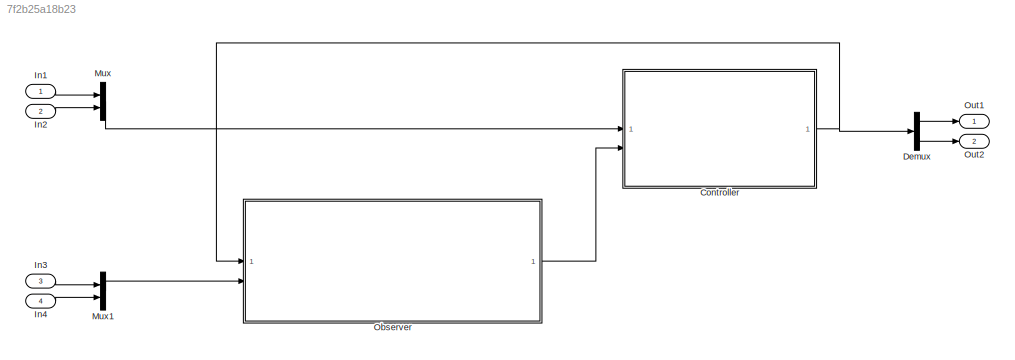
MODEL slx_7f2b25a18b23
KIND model
CONFIG AbsTol = auto
CONFIG EnableMultiTasking = off
CONFIG FixedStep = auto
CONFIG MaxStep = auto
CONFIG MinStep = auto
CONFIG RelTol = 1e-3
CONFIG SampleTimeConstraint = Unconstrained
CONFIG SolverName = VariableStepAuto
CONFIG StartTime = 0.0
CONFIG StopTime = 10.0
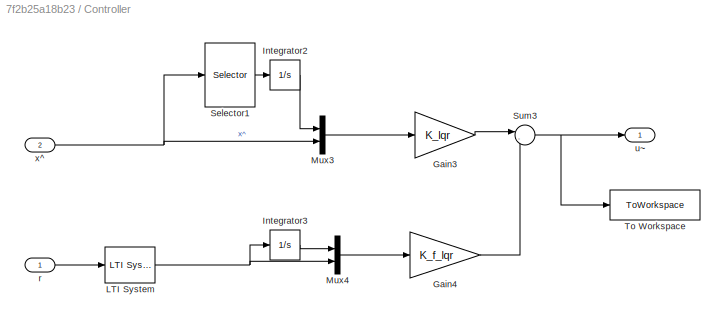
BLOCK [SubSystem] Controller
BLOCK [Gain] Controller/Gain3
  Gain = K_lqr
  Multiplication = Matrix(K*u)
BLOCK [Gain] Controller/Gain4
  Gain = K_f_lqr
  Multiplication = Matrix(K*u)
BLOCK [Integrator] Controller/Integrator2
BLOCK [Integrator] Controller/Integrator3
BLOCK [Reference] Controller/LTI System  REF=cstblocks/LTI System
  SourceBlock = cstblocks/LTI System
  SourceType = LTI Block
BLOCK [Mux] Controller/Mux3
  DisplayOption = bar
  Inputs = 2
BLOCK [Mux] Controller/Mux4
  DisplayOption = bar
  Inputs = 2
BLOCK [Selector] Controller/Selector1
  IndexOptions = Index vector (dialog)
  Indices = [1 2]
  InputPortWidth = 6
  OutputSizes = 1
BLOCK [Sum] Controller/Sum3
  Inputs = |-+
BLOCK [ToWorkspace] Controller/To Workspace
  FixptAsFi = on
  MaxDataPoints = inf
  SampleTime = -1
  SaveFormat = Timeseries
  VariableName = u
BLOCK [Inport] Controller/r
BLOCK [Outport] Controller/u~
BLOCK [Inport] Controller/x^
  Port = 2
BLOCK [Demux] Demux
  Outputs = 2
BLOCK [Inport] In1
BLOCK [Inport] In2
  Port = 2
BLOCK [Inport] In3
  Port = 3
BLOCK [Inport] In4
  Port = 4
BLOCK [Mux] Mux
  DisplayOption = bar
  Inputs = 2
BLOCK [Mux] Mux1
  DisplayOption = bar
  Inputs = 2
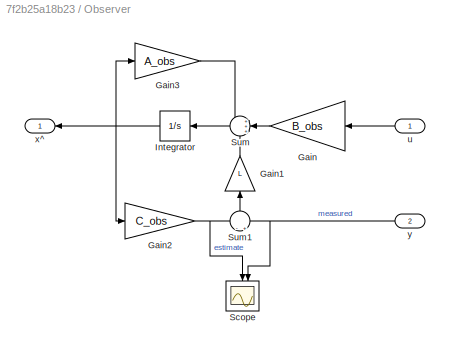
BLOCK [SubSystem] Observer
BLOCK [Gain] Observer/Gain
  Gain = B_obs
  Multiplication = Matrix(K*u)
  NameLocation = top
BLOCK [Gain] Observer/Gain1
  Gain = L
  Multiplication = Matrix(K*u)
  NameLocation = right
BLOCK [Gain] Observer/Gain2
  Gain = C_obs
  Multiplication = Matrix(K*u)
BLOCK [Gain] Observer/Gain3
  Gain = A_obs
  Multiplication = Matrix(K*u)
BLOCK [Integrator] Observer/Integrator
  NameLocation = top
BLOCK [Scope] Observer/Scope
  Floating = off
  NameLocation = left
  NumInputPorts = 2
  ScopeSpecificationString = Simulink.scopes.TimeScopeBlockCfg('CurrentConfiguration', extmgr.ConfigurationSet(extmgr.Configuration('Core','General UI',true),extmgr.Configuration('Core','Source UI',true),extmgr.Configuration('Sources','WiredSimulink',true,'DataLoggingVariableName','ScopeData1'),extmgr.Configuration('Visuals','Time Domain',true,'SerializedDisplays',{struct('MinYLimReal','-0.13585','MaxYLimReal','1.19858','YLab...<+1696ch>
BLOCK [Sum] Observer/Sum
  Inputs = +++
  NameLocation = top
BLOCK [Sum] Observer/Sum1
  Inputs = -|+
  NameLocation = right
BLOCK [Inport] Observer/u
  NameLocation = top
BLOCK [Outport] Observer/x^
  NameLocation = top
BLOCK [Inport] Observer/y
  NameLocation = top
  Port = 2
BLOCK [Outport] Out1
BLOCK [Outport] Out2
  Port = 2
LINE Controller/Gain3:1 -> Controller/Sum3:1
LINE Controller/Gain4:1 -> Controller/Sum3:2
LINE Controller/Integrator2:1 -> Controller/Mux3:1
LINE Controller/Integrator3:1 -> Controller/Mux4:1
NET Controller/LTI System:1 -> Controller/Integrator3:1, Controller/Mux4:2
LINE Controller/Mux3:1 -> Controller/Gain3:1
LINE Controller/Mux4:1 -> Controller/Gain4:1
LINE Controller/Selector1:1 -> Controller/Integrator2:1
NET Controller/Sum3:1 -> Controller/To Workspace:1, Controller/u~:1
LINE Controller/r:1 -> Controller/LTI System:1
NET Controller/x^:1 -> Controller/Mux3:2, Controller/Selector1:1
NET Controller:1 -> Demux:1, Observer:1
LINE Demux:1 -> Out1:1
LINE Demux:2 -> Out2:1
LINE In1:1 -> Mux:1
LINE In2:1 -> Mux:2
LINE In3:1 -> Mux1:1
LINE In4:1 -> Mux1:2
LINE Mux1:1 -> Observer:2
LINE Mux:1 -> Controller:1
LINE Observer/Gain1:1 -> Observer/Sum:3
NET Observer/Gain2:1 -> Observer/Scope:1, Observer/Sum1:1
LINE Observer/Gain3:1 -> Observer/Sum:1
LINE Observer/Gain:1 -> Observer/Sum:2
NET Observer/Integrator:1 -> Observer/Gain2:1, Observer/Gain3:1, Observer/x^:1
LINE Observer/Sum1:1 -> Observer/Gain1:1
LINE Observer/Sum:1 -> Observer/Integrator:1
LINE Observer/u:1 -> Observer/Gain:1
NET Observer/y:1 -> Observer/Scope:2, Observer/Sum1:2
LINE Observer:1 -> Controller:2
note: NET lines group one-source signal fan-out (src -> all destinations, sorted); 1:1 wires keep LINE
